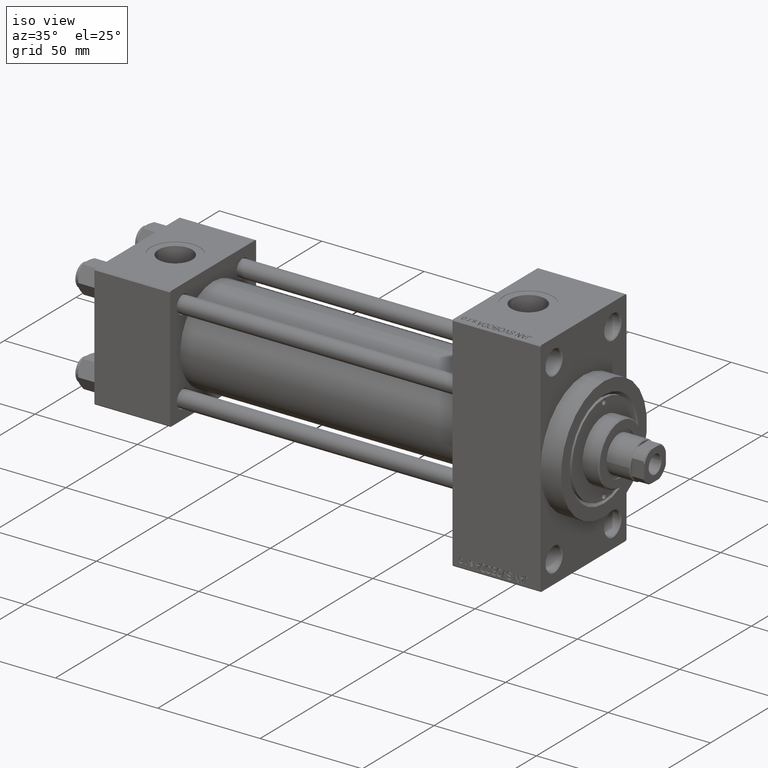
[diagram: clean part render]
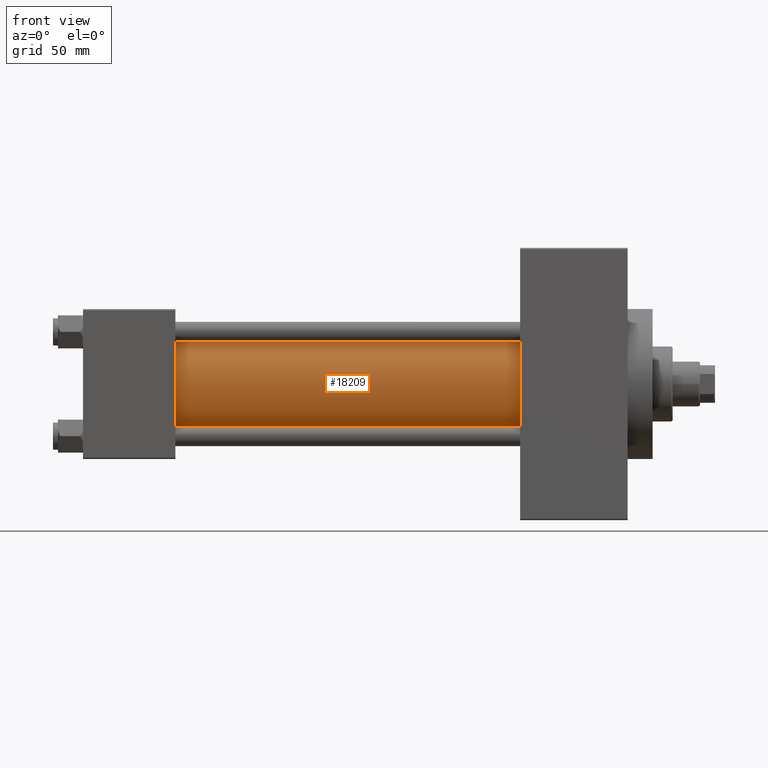
[diagram: tour spotlight — one face highlighted and labeled with its STEP entity id]
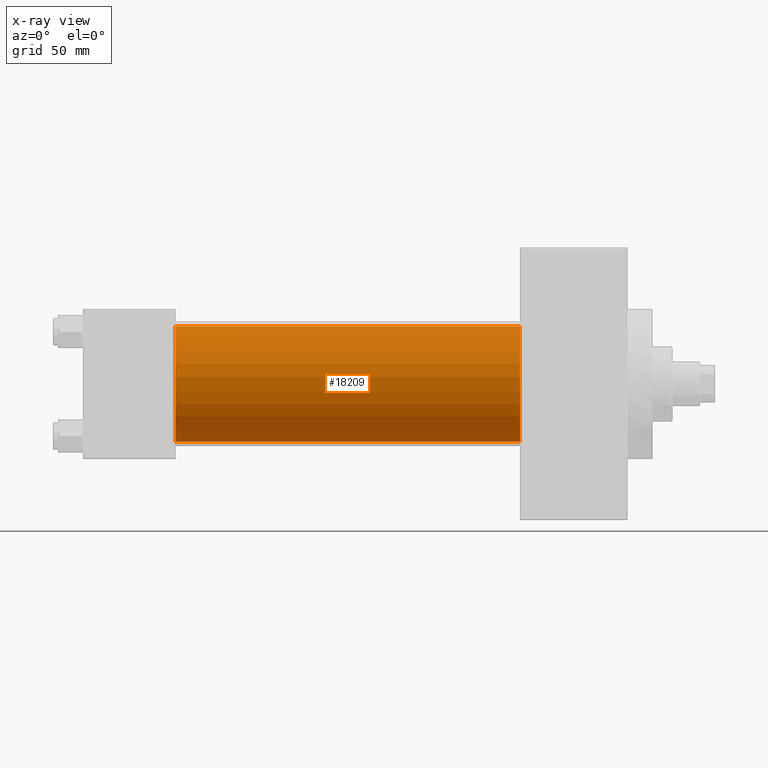
[diagram: x-ray of the same camera — body ghosted, this tour face saturated]
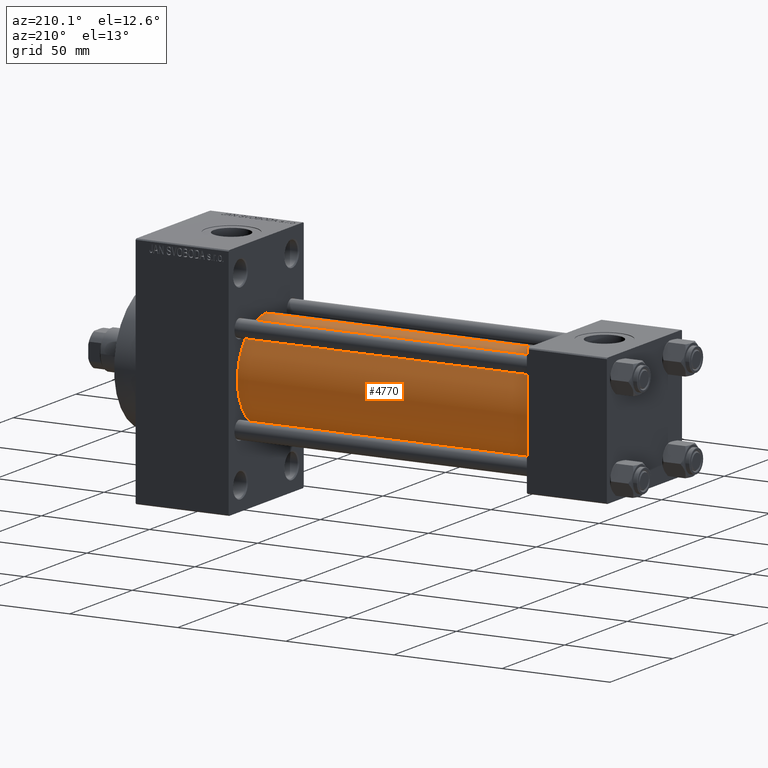
[diagram: tour spotlight — one face highlighted and labeled with its STEP entity id]
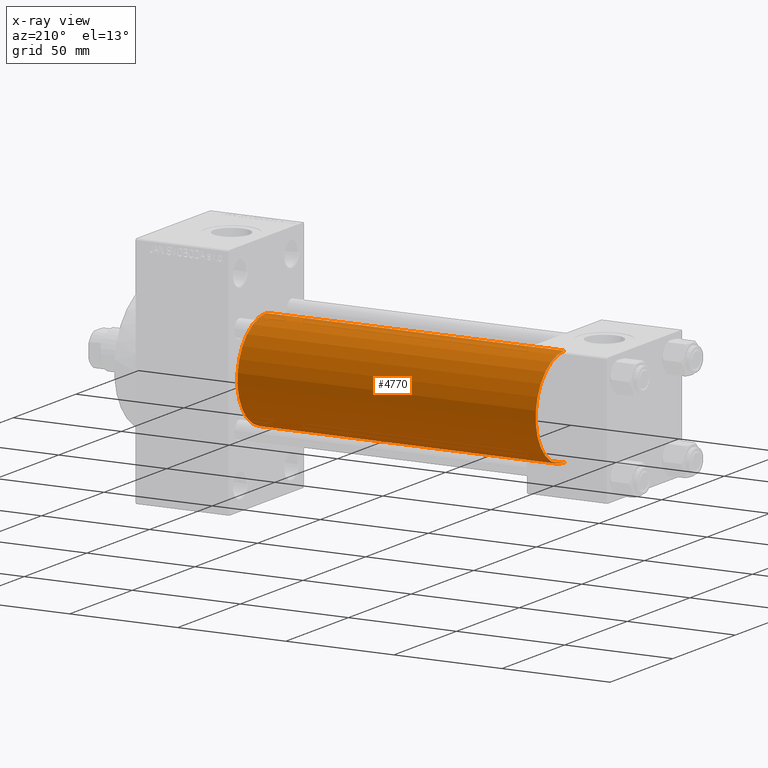
[diagram: x-ray of the same camera — body ghosted, this tour face saturated]
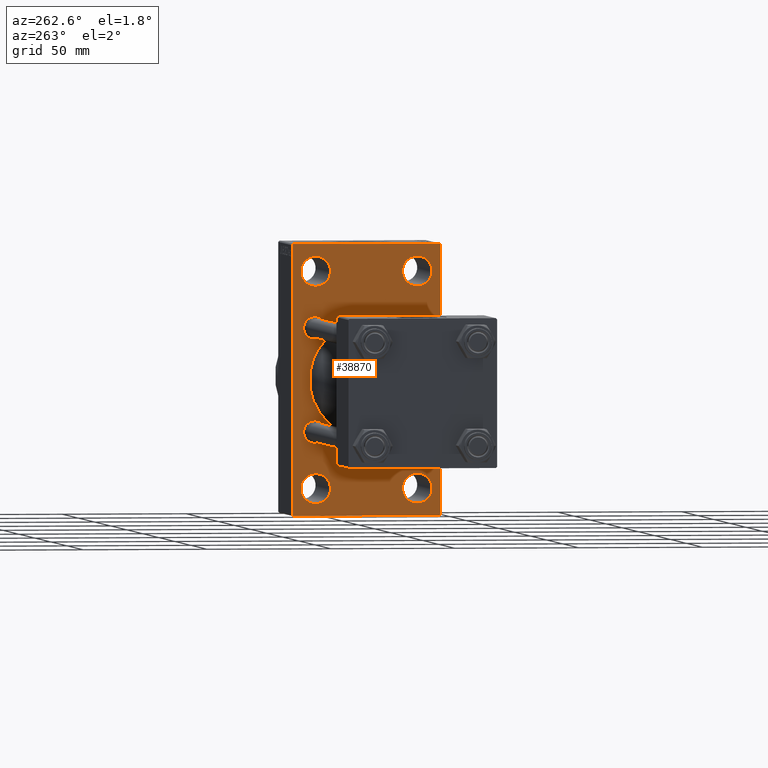
[diagram: tour spotlight — one face highlighted and labeled with its STEP entity id]
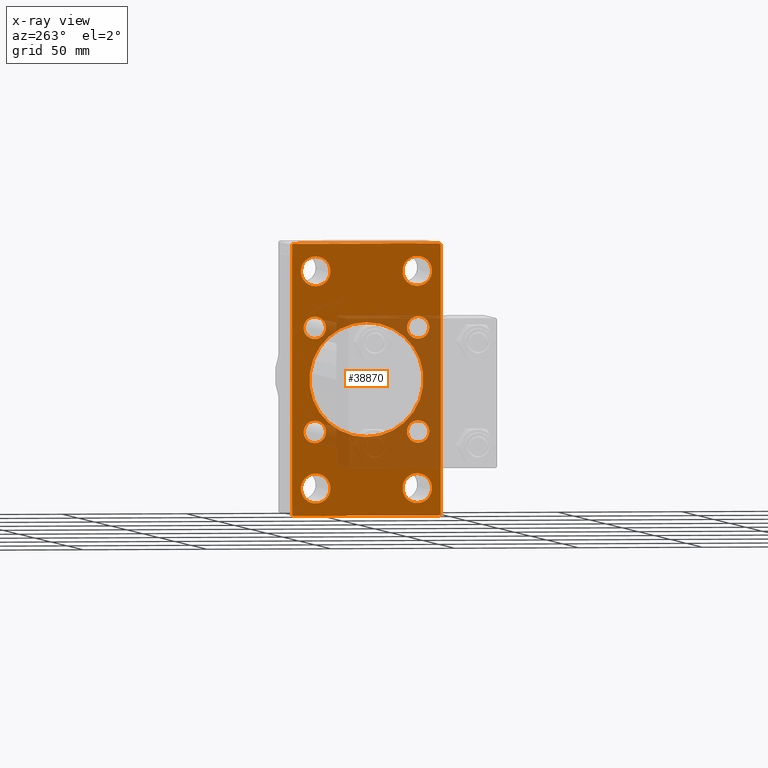
[diagram: x-ray of the same camera — body ghosted, this tour face saturated]
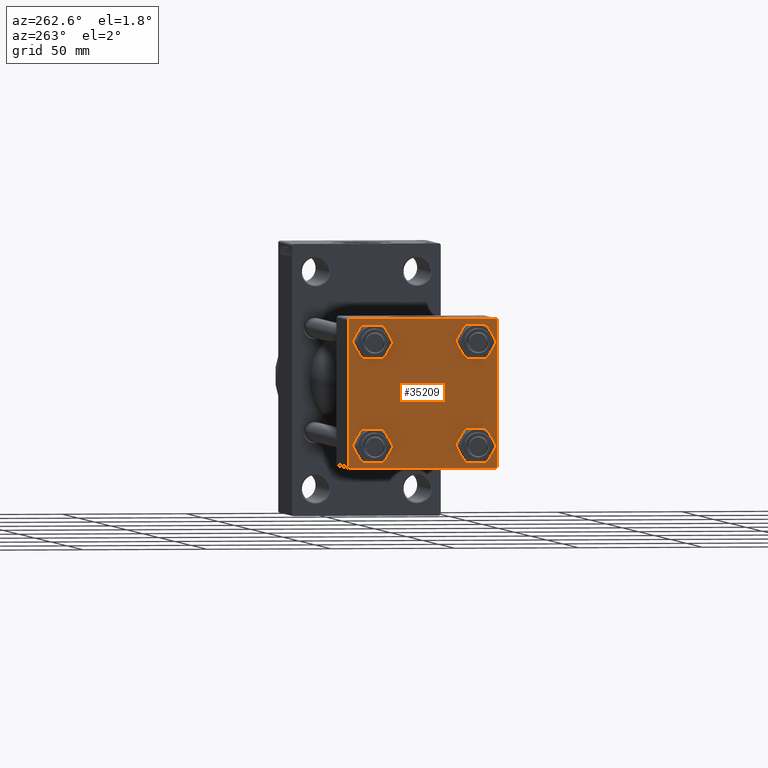
[diagram: tour spotlight — one face highlighted and labeled with its STEP entity id]
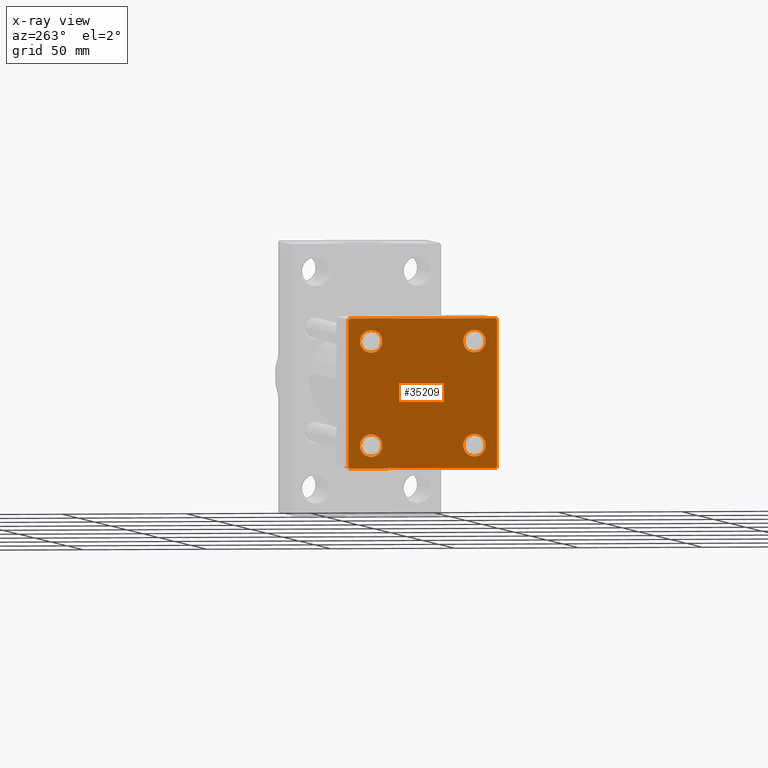
[diagram: x-ray of the same camera — body ghosted, this tour face saturated]
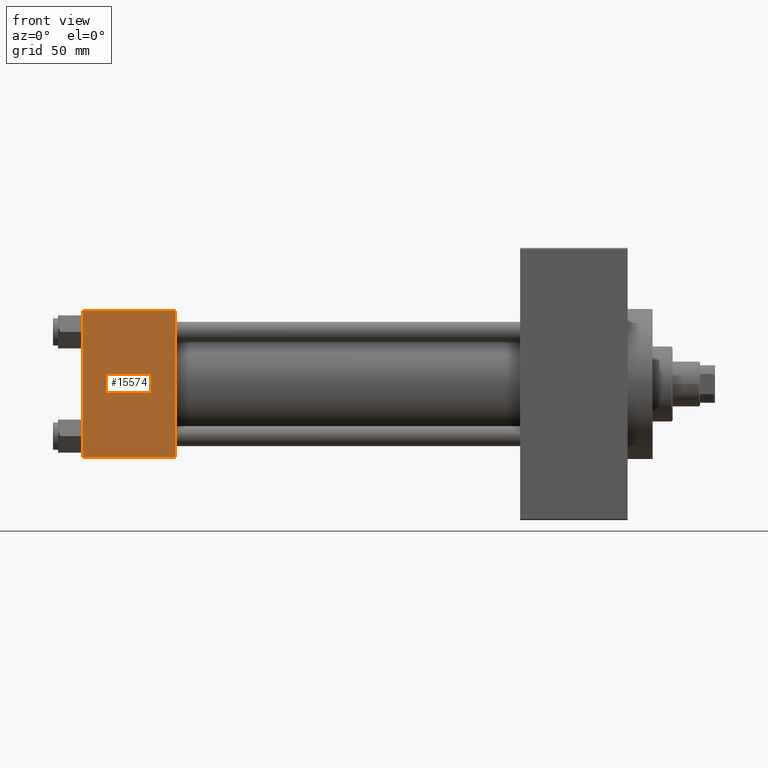
[diagram: tour spotlight — one face highlighted and labeled with its STEP entity id]
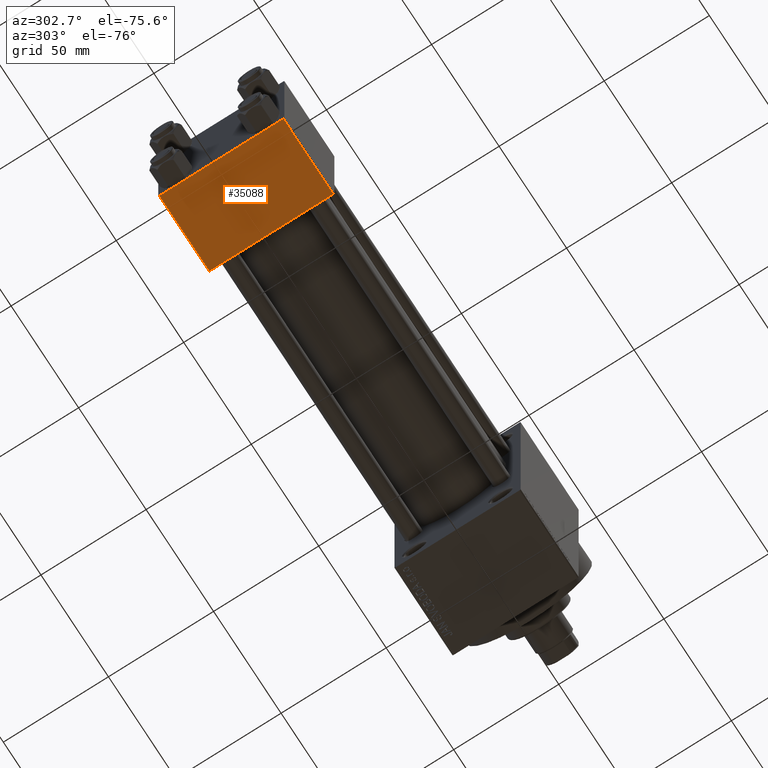
[diagram: tour spotlight — one face highlighted and labeled with its STEP entity id]
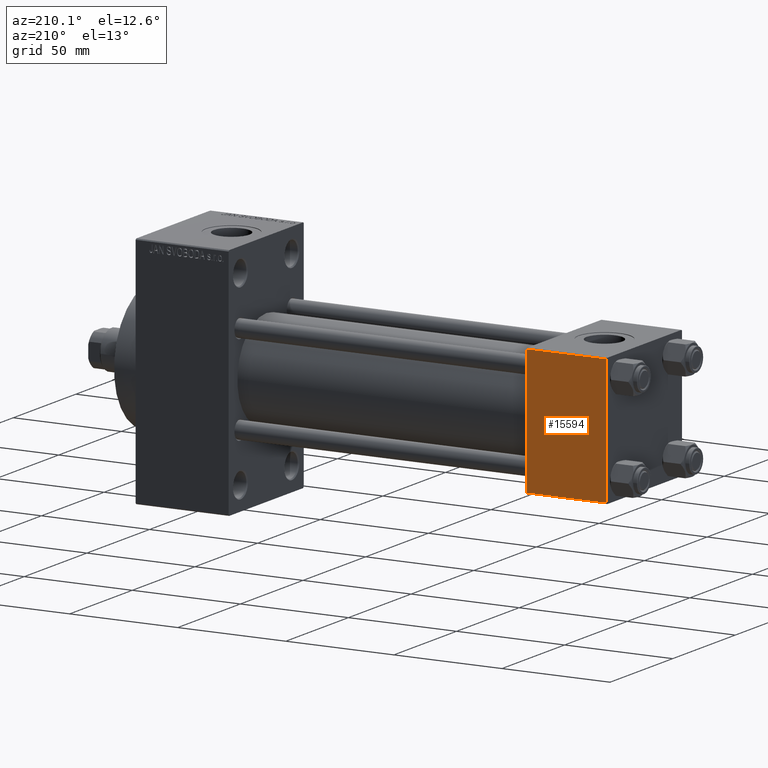
[diagram: tour spotlight — one face highlighted and labeled with its STEP entity id]
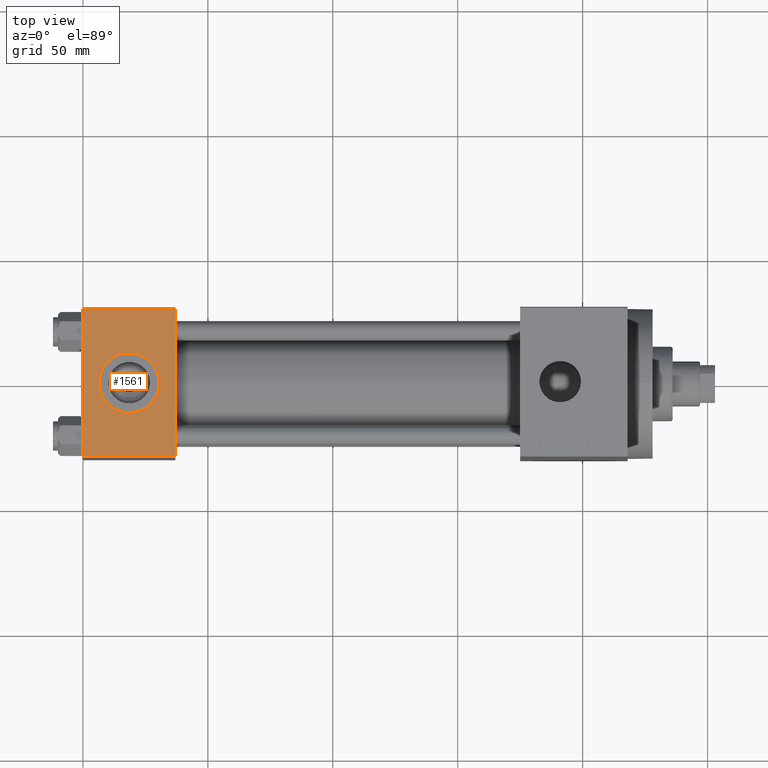
[diagram: tour spotlight — one face highlighted and labeled with its STEP entity id]
A machine part: a face-by-face anatomy tour. The part has 1112 B-rep faces; the first image is the clean iso view, then the 8 largest visible faces are spotlighted one at a time (largest first), each with its STEP entity span.

Face 1 — front view, entity #18209. An x-ray twin of the same camera follows (body ghosted, this face saturated) — the face is partly hidden behind the body. In plain terms, the highlighted cylindrical surface (partial cylindrical patch) has radius 23 mm, axis along (-1, -0, -0).
Definition (entity closure, byte-faithful):
#1078 = EDGE_CURVE ( 'NONE', #16153, #42347, #10892, .T. ) ;
#1674 = CYLINDRICAL_SURFACE ( 'NONE', #33558, 23.00000000000000000 ) ;
#1712 = ORIENTED_EDGE ( 'NONE', *, *, #47177, .F. ) ;
#1812 = ORIENTED_EDGE ( 'NONE', *, *, #8561, .T. ) ;
#1850 = VECTOR ( 'NONE', #27648, 1000.000000000000000 ) ;
#2218 = LINE ( 'NONE', #45874, #1850 ) ;
#8561 = EDGE_CURVE ( 'NONE', #22349, #12540, #8835, .T. ) ;
#8600 = AXIS2_PLACEMENT_3D ( 'NONE', #22493, #32809, #43844 ) ;
#8835 = CIRCLE ( 'NONE', #11164, 23.00000000000000000 ) ;
#10427 = CARTESIAN_POINT ( 'NONE',  ( 175.0000000000000284, -2.602085213965210642E-15, 23.00000000000000000 ) ) ;
#10892 = CIRCLE ( 'NONE', #8600, 23.00000000000000000 ) ;
#11164 = AXIS2_PLACEMENT_3D ( 'NONE', #26209, #11582, #44670 ) ;
#11582 = DIRECTION ( 'NONE',  ( 1.000000000000000000, -0.000000000000000000, 0.000000000000000000 ) ) ;
#12004 = CARTESIAN_POINT ( 'NONE',  ( 175.0000000000000284, -2.602085213965210642E-15, 0.000000000000000000 ) ) ;
#12540 = VERTEX_POINT ( 'NONE', #33211 ) ;
#13183 = EDGE_LOOP ( 'NONE', ( #1712, #19456, #34966, #1812 ) ) ;
#16153 = VERTEX_POINT ( 'NONE', #10427 ) ;
#18209 = ADVANCED_FACE ( 'NONE', ( #34308 ), #1674, .T. ) ;
#19456 = ORIENTED_EDGE ( 'NONE', *, *, #1078, .F. ) ;
#19504 = CARTESIAN_POINT ( 'NONE',  ( 175.0000000000000284, 2.146024240737016609E-16, -23.00000000000000000 ) ) ;
#19665 = DIRECTION ( 'NONE',  ( -1.000000000000000000, -0.000000000000000000, -0.000000000000000000 ) ) ;
#21801 = LINE ( 'NONE', #43394, #31676 ) ;
#22349 = VERTEX_POINT ( 'NONE', #31230 ) ;
#22493 = CARTESIAN_POINT ( 'NONE',  ( 175.0000000000000284, -2.602085213965210642E-15, 0.000000000000000000 ) ) ;
#22803 = DIRECTION ( 'NONE',  ( 0.000000000000000000, 0.000000000000000000, 1.000000000000000000 ) ) ;
#26209 = CARTESIAN_POINT ( 'NONE',  ( 37.00000000000000711, -2.602085213965210642E-15, 0.000000000000000000 ) ) ;
#27648 = DIRECTION ( 'NONE',  ( -1.000000000000000000, -0.000000000000000000, -0.000000000000000000 ) ) ;
#31230 = CARTESIAN_POINT ( 'NONE',  ( 37.00000000000000711, -2.602085213965210642E-15, 23.00000000000000000 ) ) ;
#31676 = VECTOR ( 'NONE', #44113, 1000.000000000000000 ) ;
#32809 = DIRECTION ( 'NONE',  ( 1.000000000000000000, 0.000000000000000000, 0.000000000000000000 ) ) ;
#33211 = CARTESIAN_POINT ( 'NONE',  ( 37.00000000000000711, 2.146024240737016609E-16, -23.00000000000000000 ) ) ;
#33558 = AXIS2_PLACEMENT_3D ( 'NONE', #12004, #19665, #22803 ) ;
#34308 = FACE_OUTER_BOUND ( 'NONE', #13183, .T. ) ;
#34966 = ORIENTED_EDGE ( 'NONE', *, *, #45526, .T. ) ;
#42347 = VERTEX_POINT ( 'NONE', #19504 ) ;
#43394 = CARTESIAN_POINT ( 'NONE',  ( 175.0000000000000284, -2.602085213965210642E-15, 23.00000000000000000 ) ) ;
#43844 = DIRECTION ( 'NONE',  ( 0.000000000000000000, 0.000000000000000000, -1.000000000000000000 ) ) ;
#44113 = DIRECTION ( 'NONE',  ( -1.000000000000000000, -0.000000000000000000, -0.000000000000000000 ) ) ;
#44670 = DIRECTION ( 'NONE',  ( 0.000000000000000000, 0.000000000000000000, 1.000000000000000000 ) ) ;
#45526 = EDGE_CURVE ( 'NONE', #16153, #22349, #21801, .T. ) ;
#45874 = CARTESIAN_POINT ( 'NONE',  ( 175.0000000000000284, 2.146024240737016609E-16, -23.00000000000000000 ) ) ;
#47177 = EDGE_CURVE ( 'NONE', #42347, #12540, #2218, .T. ) ;

Face 2 — auxiliary view, entity #4770. An x-ray twin of the same camera follows (body ghosted, this face saturated) — the face is partly hidden behind the body. In plain terms, the highlighted cylindrical surface (partial cylindrical patch) has radius 23 mm, axis along (-1, -0, -0).
Definition (entity closure, byte-faithful):
#1850 = VECTOR ( 'NONE', #27648, 1000.000000000000000 ) ;
#2218 = LINE ( 'NONE', #45874, #1850 ) ;
#2343 = CARTESIAN_POINT ( 'NONE',  ( 175.0000000000000284, -2.602085213965210642E-15, 0.000000000000000000 ) ) ;
#4167 = ORIENTED_EDGE ( 'NONE', *, *, #47177, .T. ) ;
#4515 = CYLINDRICAL_SURFACE ( 'NONE', #7191, 23.00000000000000000 ) ;
#4770 = ADVANCED_FACE ( 'NONE', ( #34253 ), #4515, .T. ) ;
#4856 = CIRCLE ( 'NONE', #32456, 23.00000000000000000 ) ;
#4866 = EDGE_CURVE ( 'NONE', #12540, #22349, #4856, .T. ) ;
#5214 = DIRECTION ( 'NONE',  ( 1.000000000000000000, -0.000000000000000000, 0.000000000000000000 ) ) ;
#5943 = DIRECTION ( 'NONE',  ( 0.000000000000000000, 0.000000000000000000, -1.000000000000000000 ) ) ;
#7191 = AXIS2_PLACEMENT_3D ( 'NONE', #11951, #12879, #19843 ) ;
#9660 = EDGE_LOOP ( 'NONE', ( #43694, #4167, #39302, #20098 ) ) ;
#10427 = CARTESIAN_POINT ( 'NONE',  ( 175.0000000000000284, -2.602085213965210642E-15, 23.00000000000000000 ) ) ;
#11951 = CARTESIAN_POINT ( 'NONE',  ( 175.0000000000000284, -2.602085213965210642E-15, 0.000000000000000000 ) ) ;
#12540 = VERTEX_POINT ( 'NONE', #33211 ) ;
#12814 = AXIS2_PLACEMENT_3D ( 'NONE', #2343, #31856, #5943 ) ;
#12879 = DIRECTION ( 'NONE',  ( -1.000000000000000000, -0.000000000000000000, -0.000000000000000000 ) ) ;
#16153 = VERTEX_POINT ( 'NONE', #10427 ) ;
#19504 = CARTESIAN_POINT ( 'NONE',  ( 175.0000000000000284, 2.146024240737016609E-16, -23.00000000000000000 ) ) ;
#19843 = DIRECTION ( 'NONE',  ( 0.000000000000000000, 0.000000000000000000, 1.000000000000000000 ) ) ;
#20098 = ORIENTED_EDGE ( 'NONE', *, *, #45526, .F. ) ;
#21801 = LINE ( 'NONE', #43394, #31676 ) ;
#22349 = VERTEX_POINT ( 'NONE', #31230 ) ;
#27648 = DIRECTION ( 'NONE',  ( -1.000000000000000000, -0.000000000000000000, -0.000000000000000000 ) ) ;
#27850 = EDGE_CURVE ( 'NONE', #42347, #16153, #38091, .T. ) ;
#31125 = CARTESIAN_POINT ( 'NONE',  ( 37.00000000000000711, -2.602085213965210642E-15, 0.000000000000000000 ) ) ;
#31230 = CARTESIAN_POINT ( 'NONE',  ( 37.00000000000000711, -2.602085213965210642E-15, 23.00000000000000000 ) ) ;
#31676 = VECTOR ( 'NONE', #44113, 1000.000000000000000 ) ;
#31856 = DIRECTION ( 'NONE',  ( 1.000000000000000000, 0.000000000000000000, 0.000000000000000000 ) ) ;
#32456 = AXIS2_PLACEMENT_3D ( 'NONE', #31125, #5214, #34492 ) ;
#33211 = CARTESIAN_POINT ( 'NONE',  ( 37.00000000000000711, 2.146024240737016609E-16, -23.00000000000000000 ) ) ;
#34253 = FACE_OUTER_BOUND ( 'NONE', #9660, .T. ) ;
#34492 = DIRECTION ( 'NONE',  ( 0.000000000000000000, 0.000000000000000000, 1.000000000000000000 ) ) ;
#38091 = CIRCLE ( 'NONE', #12814, 23.00000000000000000 ) ;
#39302 = ORIENTED_EDGE ( 'NONE', *, *, #4866, .T. ) ;
#42347 = VERTEX_POINT ( 'NONE', #19504 ) ;
#43394 = CARTESIAN_POINT ( 'NONE',  ( 175.0000000000000284, -2.602085213965210642E-15, 23.00000000000000000 ) ) ;
#43694 = ORIENTED_EDGE ( 'NONE', *, *, #27850, .F. ) ;
#44113 = DIRECTION ( 'NONE',  ( -1.000000000000000000, -0.000000000000000000, -0.000000000000000000 ) ) ;
#45526 = EDGE_CURVE ( 'NONE', #16153, #22349, #21801, .T. ) ;
#45874 = CARTESIAN_POINT ( 'NONE',  ( 175.0000000000000284, 2.146024240737016609E-16, -23.00000000000000000 ) ) ;
#47177 = EDGE_CURVE ( 'NONE', #42347, #12540, #2218, .T. ) ;

Face 3 — auxiliary view, entity #38870. An x-ray twin of the same camera follows (body ghosted, this face saturated) — the face is partly hidden behind the body. In plain terms, the highlighted planar face has unit normal (-1, 0, 0).
Definition (entity closure, byte-faithful):
#995 = AXIS2_PLACEMENT_3D ( 'NONE', #27931, #38961, #35603 ) ;
#1078 = EDGE_CURVE ( 'NONE', #16153, #42347, #10892, .T. ) ;
#1313 = CARTESIAN_POINT ( 'NONE',  ( 175.0000000000000284, -20.84999999999999076, -20.85000000000000497 ) ) ;
#1556 = CARTESIAN_POINT ( 'NONE',  ( 175.0000000000000284, -20.84999999999999076, 25.35000000000001208 ) ) ;
#1630 = ORIENTED_EDGE ( 'NONE', *, *, #41051, .T. ) ;
#1692 = CARTESIAN_POINT ( 'NONE',  ( 175.0000000000000284, -20.84999999999999076, -25.35000000000001208 ) ) ;
#1796 = DIRECTION ( 'NONE',  ( 0.000000000000000000, 0.000000000000000000, 1.000000000000000000 ) ) ;
#1815 = DIRECTION ( 'NONE',  ( 0.000000000000000000, 0.000000000000000000, 1.000000000000000000 ) ) ;
#1840 = AXIS2_PLACEMENT_3D ( 'NONE', #31538, #27944, #31778 ) ;
#2058 = VERTEX_POINT ( 'NONE', #18839 ) ;
#2333 = EDGE_LOOP ( 'NONE', ( #42410, #23725 ) ) ;
#2343 = CARTESIAN_POINT ( 'NONE',  ( 175.0000000000000284, -2.602085213965210642E-15, 0.000000000000000000 ) ) ;
#2532 = CARTESIAN_POINT ( 'NONE',  ( 175.0000000000000284, -20.84999999999999076, -20.85000000000000497 ) ) ;
#2585 = CARTESIAN_POINT ( 'NONE',  ( 175.0000000000000284, -20.50000000000000000, 43.50000000000000000 ) ) ;
#2602 = AXIS2_PLACEMENT_3D ( 'NONE', #2585, #43119, #13611 ) ;
#2630 = LINE ( 'NONE', #46285, #46723 ) ;
#2796 = FACE_BOUND ( 'NONE', #41512, .T. ) ;
#3401 = ORIENTED_EDGE ( 'NONE', *, *, #30911, .T. ) ;
#3521 = DIRECTION ( 'NONE',  ( 1.000000000000000000, -0.000000000000000000, 0.000000000000000000 ) ) ;
#3608 = ORIENTED_EDGE ( 'NONE', *, *, #19882, .T. ) ;
#3833 = VERTEX_POINT ( 'NONE', #6219 ) ;
#3920 = CARTESIAN_POINT ( 'NONE',  ( 175.0000000000000284, -20.84999999999999076, 16.34999999999999787 ) ) ;
#4002 = EDGE_CURVE ( 'NONE', #41050, #15583, #7120, .T. ) ;
#4888 = AXIS2_PLACEMENT_3D ( 'NONE', #28253, #3521, #20802 ) ;
#5243 = EDGE_CURVE ( 'NONE', #12834, #3833, #19442, .T. ) ;
#5386 = AXIS2_PLACEMENT_3D ( 'NONE', #32063, #39494, #46914 ) ;
#5421 = DIRECTION ( 'NONE',  ( 1.000000000000000000, -0.000000000000000000, 0.000000000000000000 ) ) ;
#5464 = LINE ( 'NONE', #12663, #44690 ) ;
#5943 = DIRECTION ( 'NONE',  ( 0.000000000000000000, 0.000000000000000000, -1.000000000000000000 ) ) ;
#6015 = EDGE_CURVE ( 'NONE', #38180, #25808, #27111, .T. ) ;
#6022 = CARTESIAN_POINT ( 'NONE',  ( 175.0000000000000284, 29.99999999999999645, -54.49999999999999289 ) ) ;
#6077 = EDGE_CURVE ( 'NONE', #20039, #29790, #23282, .T. ) ;
#6081 = ORIENTED_EDGE ( 'NONE', *, *, #27850, .T. ) ;
#6219 = CARTESIAN_POINT ( 'NONE',  ( 175.0000000000000284, 20.84999999999999787, 16.34999999999999432 ) ) ;
#6387 = FACE_BOUND ( 'NONE', #30022, .T. ) ;
#6644 = CARTESIAN_POINT ( 'NONE',  ( 175.0000000000000284, 20.84999999999999787, -16.34999999999999432 ) ) ;
#6857 = FACE_BOUND ( 'NONE', #42821, .T. ) ;
#7120 = CIRCLE ( 'NONE', #995, 5.999999999999838352 ) ;
#7127 = CIRCLE ( 'NONE', #46197, 5.999999999999838352 ) ;
#7553 = VECTOR ( 'NONE', #42747, 1000.000000000000000 ) ;
#8159 = CARTESIAN_POINT ( 'NONE',  ( 175.0000000000000284, -20.84999999999999076, 20.85000000000000497 ) ) ;
#8540 = CIRCLE ( 'NONE', #34562, 4.500000000000007105 ) ;
#8600 = AXIS2_PLACEMENT_3D ( 'NONE', #22493, #32809, #43844 ) ;
#8630 = DIRECTION ( 'NONE',  ( 0.000000000000000000, 0.000000000000000000, 1.000000000000000000 ) ) ;
#8904 = EDGE_LOOP ( 'NONE', ( #45112, #1630 ) ) ;
#9265 = EDGE_LOOP ( 'NONE', ( #36401, #35742 ) ) ;
#9363 = CARTESIAN_POINT ( 'NONE',  ( 175.0000000000000284, 41.99999999999997158, 41.99999999999997158 ) ) ;
#9472 = ORIENTED_EDGE ( 'NONE', *, *, #37033, .T. ) ;
#9957 = AXIS2_PLACEMENT_3D ( 'NONE', #44167, #30006, #18969 ) ;
#10249 = CARTESIAN_POINT ( 'NONE',  ( 175.0000000000000284, 20.84999999999999787, -20.85000000000000142 ) ) ;
#10427 = CARTESIAN_POINT ( 'NONE',  ( 175.0000000000000284, -2.602085213965210642E-15, 23.00000000000000000 ) ) ;
#10892 = CIRCLE ( 'NONE', #8600, 23.00000000000000000 ) ;
#10954 = DIRECTION ( 'NONE',  ( 0.000000000000000000, 0.000000000000000000, 1.000000000000000000 ) ) ;
#11301 = DIRECTION ( 'NONE',  ( 0.000000000000000000, 0.000000000000000000, 1.000000000000000000 ) ) ;
#11659 = CARTESIAN_POINT ( 'NONE',  ( 175.0000000000000284, -30.00000000000000000, 54.00000000000002842 ) ) ;
#11726 = DIRECTION ( 'NONE',  ( 0.000000000000000000, 0.000000000000000000, -1.000000000000000000 ) ) ;
#11852 = ORIENTED_EDGE ( 'NONE', *, *, #30012, .T. ) ;
#12216 = EDGE_LOOP ( 'NONE', ( #31599, #3608 ) ) ;
#12346 = DIRECTION ( 'NONE',  ( 0.000000000000000000, 0.000000000000000000, 1.000000000000000000 ) ) ;
#12590 = ORIENTED_EDGE ( 'NONE', *, *, #24963, .F. ) ;
#12657 = DIRECTION ( 'NONE',  ( 1.000000000000000000, -0.000000000000000000, 0.000000000000000000 ) ) ;
#12663 = CARTESIAN_POINT ( 'NONE',  ( 175.0000000000000284, -30.00000000000000000, 54.50000000000000000 ) ) ;
#12814 = AXIS2_PLACEMENT_3D ( 'NONE', #2343, #31856, #5943 ) ;
#12834 = VERTEX_POINT ( 'NONE', #23709 ) ;
#13114 = EDGE_CURVE ( 'NONE', #39627, #27586, #31079, .T. ) ;
#13397 = ORIENTED_EDGE ( 'NONE', *, *, #25694, .T. ) ;
#13611 = DIRECTION ( 'NONE',  ( 0.000000000000000000, 0.000000000000000000, 1.000000000000000000 ) ) ;
#14037 = FACE_BOUND ( 'NONE', #43906, .T. ) ;
#14114 = VERTEX_POINT ( 'NONE', #35879 ) ;
#14275 = FACE_BOUND ( 'NONE', #9265, .T. ) ;
#15029 = VERTEX_POINT ( 'NONE', #11659 ) ;
#15286 = ORIENTED_EDGE ( 'NONE', *, *, #1078, .T. ) ;
#15583 = VERTEX_POINT ( 'NONE', #31950 ) ;
#15676 = CARTESIAN_POINT ( 'NONE',  ( 175.0000000000000284, 29.50000000000002132, -54.49999999999999289 ) ) ;
#15689 = ORIENTED_EDGE ( 'NONE', *, *, #46382, .F. ) ;
#16153 = VERTEX_POINT ( 'NONE', #10427 ) ;
#16506 = VERTEX_POINT ( 'NONE', #22109 ) ;
#16541 = DIRECTION ( 'NONE',  ( -0.000000000000000000, -0.7071067811865474617, -0.7071067811865474617 ) ) ;
#16817 = CIRCLE ( 'NONE', #9957, 4.500000000000007105 ) ;
#17210 = EDGE_CURVE ( 'NONE', #2058, #27029, #46529, .T. ) ;
#17367 = CARTESIAN_POINT ( 'NONE',  ( 175.0000000000000284, 20.50000000000000000, 43.50000000000000000 ) ) ;
#17421 = FACE_BOUND ( 'NONE', #2333, .T. ) ;
#17514 = EDGE_LOOP ( 'NONE', ( #25097, #19389 ) ) ;
#17589 = DIRECTION ( 'NONE',  ( 1.000000000000000000, -0.000000000000000000, 0.000000000000000000 ) ) ;
#18199 = LINE ( 'NONE', #28353, #7553 ) ;
#18302 = DIRECTION ( 'NONE',  ( 0.000000000000000000, 0.000000000000000000, 1.000000000000000000 ) ) ;
#18839 = CARTESIAN_POINT ( 'NONE',  ( 175.0000000000000284, 20.50000000000000000, 49.49999999999983658 ) ) ;
#18969 = DIRECTION ( 'NONE',  ( 0.000000000000000000, 0.000000000000000000, 1.000000000000000000 ) ) ;
#19083 = CIRCLE ( 'NONE', #42056, 5.999999999999838352 ) ;
#19386 = EDGE_CURVE ( 'NONE', #36933, #16506, #18199, .T. ) ;
#19389 = ORIENTED_EDGE ( 'NONE', *, *, #6077, .T. ) ;
#19442 = CIRCLE ( 'NONE', #1840, 4.500000000000007105 ) ;
#19449 = EDGE_CURVE ( 'NONE', #3833, #12834, #27442, .T. ) ;
#19504 = CARTESIAN_POINT ( 'NONE',  ( 175.0000000000000284, 2.146024240737016609E-16, -23.00000000000000000 ) ) ;
#19709 = LINE ( 'NONE', #31460, #39027 ) ;
#19882 = EDGE_CURVE ( 'NONE', #27029, #2058, #46586, .T. ) ;
#19939 = LINE ( 'NONE', #6022, #36795 ) ;
#20039 = VERTEX_POINT ( 'NONE', #44696 ) ;
#20406 = CARTESIAN_POINT ( 'NONE',  ( 175.0000000000000284, -20.50000000000000000, -37.50000000000015632 ) ) ;
#20446 = EDGE_CURVE ( 'NONE', #15583, #41050, #32118, .T. ) ;
#20802 = DIRECTION ( 'NONE',  ( 0.000000000000000000, 0.000000000000000000, 1.000000000000000000 ) ) ;
#21009 = FACE_BOUND ( 'NONE', #8904, .T. ) ;
#21695 = VERTEX_POINT ( 'NONE', #36188 ) ;
#21947 = LINE ( 'NONE', #40181, #37567 ) ;
#22033 = VERTEX_POINT ( 'NONE', #1556 ) ;
#22109 = CARTESIAN_POINT ( 'NONE',  ( 175.0000000000000284, -30.00000000000000000, -53.99999999999995737 ) ) ;
#22154 = CARTESIAN_POINT ( 'NONE',  ( 175.0000000000000284, -29.49999999999997513, -54.50000000000000000 ) ) ;
#22217 = CARTESIAN_POINT ( 'NONE',  ( 175.0000000000000284, -29.50000000000002842, 54.50000000000000000 ) ) ;
#22281 = CIRCLE ( 'NONE', #27601, 4.500000000000007105 ) ;
#22341 = CARTESIAN_POINT ( 'NONE',  ( 175.0000000000000284, -20.50000000000000000, -49.49999999999983658 ) ) ;
#22493 = CARTESIAN_POINT ( 'NONE',  ( 175.0000000000000284, -2.602085213965210642E-15, 0.000000000000000000 ) ) ;
#22639 = VERTEX_POINT ( 'NONE', #22217 ) ;
#23282 = CIRCLE ( 'NONE', #2602, 5.999999999999838352 ) ;
#23619 = AXIS2_PLACEMENT_3D ( 'NONE', #31542, #46646, #1796 ) ;
#23709 = CARTESIAN_POINT ( 'NONE',  ( 175.0000000000000284, 20.84999999999999787, 25.35000000000000853 ) ) ;
#23725 = ORIENTED_EDGE ( 'NONE', *, *, #20446, .T. ) ;
#24845 = CARTESIAN_POINT ( 'NONE',  ( 175.0000000000000284, -20.50000000000000000, 49.49999999999983658 ) ) ;
#24963 = EDGE_CURVE ( 'NONE', #14114, #22639, #19709, .T. ) ;
#25097 = ORIENTED_EDGE ( 'NONE', *, *, #44833, .T. ) ;
#25114 = EDGE_CURVE ( 'NONE', #25808, #38180, #19083, .T. ) ;
#25694 = EDGE_CURVE ( 'NONE', #40313, #22033, #16817, .T. ) ;
#25748 = DIRECTION ( 'NONE',  ( 1.000000000000000000, -0.000000000000000000, 0.000000000000000000 ) ) ;
#25808 = VERTEX_POINT ( 'NONE', #22341 ) ;
#25927 = CARTESIAN_POINT ( 'NONE',  ( 175.0000000000000284, -20.50000000000000000, -43.50000000000000000 ) ) ;
#26027 = VERTEX_POINT ( 'NONE', #44046 ) ;
#27029 = VERTEX_POINT ( 'NONE', #30665 ) ;
#27033 = CARTESIAN_POINT ( 'NONE',  ( 175.0000000000000284, 20.84999999999999787, -20.85000000000000142 ) ) ;
#27111 = CIRCLE ( 'NONE', #4888, 5.999999999999838352 ) ;
#27396 = AXIS2_PLACEMENT_3D ( 'NONE', #8159, #40543, #8630 ) ;
#27442 = CIRCLE ( 'NONE', #40498, 4.500000000000007105 ) ;
#27586 = VERTEX_POINT ( 'NONE', #1692 ) ;
#27601 = AXIS2_PLACEMENT_3D ( 'NONE', #27033, #17589, #34953 ) ;
#27846 = DIRECTION ( 'NONE',  ( 0.000000000000000000, 0.000000000000000000, 1.000000000000000000 ) ) ;
#27850 = EDGE_CURVE ( 'NONE', #42347, #16153, #38091, .T. ) ;
#27931 = CARTESIAN_POINT ( 'NONE',  ( 175.0000000000000284, 20.50000000000000000, -43.50000000000000000 ) ) ;
#27944 = DIRECTION ( 'NONE',  ( 1.000000000000000000, -0.000000000000000000, 0.000000000000000000 ) ) ;
#28170 = AXIS2_PLACEMENT_3D ( 'NONE', #17367, #25748, #18302 ) ;
#28218 = DIRECTION ( 'NONE',  ( 0.000000000000000000, 0.000000000000000000, 1.000000000000000000 ) ) ;
#28253 = CARTESIAN_POINT ( 'NONE',  ( 175.0000000000000284, -20.50000000000000000, -43.50000000000000000 ) ) ;
#28353 = CARTESIAN_POINT ( 'NONE',  ( 175.0000000000000284, -42.00000000000049738, -41.99999999999904077 ) ) ;
#28679 = FACE_OUTER_BOUND ( 'NONE', #29106, .T. ) ;
#28862 = LINE ( 'NONE', #42798, #34370 ) ;
#28932 = DIRECTION ( 'NONE',  ( 1.000000000000000000, -0.000000000000000000, 0.000000000000000000 ) ) ;
#29106 = EDGE_LOOP ( 'NONE', ( #35920, #46676, #15689, #3401, #12590, #35390, #30189, #9472 ) ) ;
#29114 = EDGE_CURVE ( 'NONE', #22033, #40313, #31241, .T. ) ;
#29790 = VERTEX_POINT ( 'NONE', #24845 ) ;
#30006 = DIRECTION ( 'NONE',  ( 1.000000000000000000, -0.000000000000000000, 0.000000000000000000 ) ) ;
#30012 = EDGE_CURVE ( 'NONE', #27586, #39627, #45073, .T. ) ;
#30022 = EDGE_LOOP ( 'NONE', ( #33449, #13397 ) ) ;
#30189 = ORIENTED_EDGE ( 'NONE', *, *, #38106, .T. ) ;
#30579 = DIRECTION ( 'NONE',  ( 1.000000000000000000, -0.000000000000000000, 0.000000000000000000 ) ) ;
#30665 = CARTESIAN_POINT ( 'NONE',  ( 175.0000000000000284, 20.50000000000000000, 37.50000000000015632 ) ) ;
#30911 = EDGE_CURVE ( 'NONE', #15029, #22639, #28862, .T. ) ;
#31079 = CIRCLE ( 'NONE', #38749, 4.500000000000007105 ) ;
#31241 = CIRCLE ( 'NONE', #27396, 4.500000000000007105 ) ;
#31429 = VERTEX_POINT ( 'NONE', #15676 ) ;
#31460 = CARTESIAN_POINT ( 'NONE',  ( 175.0000000000000284, 29.99999999999999645, 54.49999999999999289 ) ) ;
#31538 = CARTESIAN_POINT ( 'NONE',  ( 175.0000000000000284, 20.84999999999999787, 20.85000000000000142 ) ) ;
#31542 = CARTESIAN_POINT ( 'NONE',  ( 175.0000000000000284, 20.50000000000000000, 43.50000000000000000 ) ) ;
#31599 = ORIENTED_EDGE ( 'NONE', *, *, #17210, .T. ) ;
#31778 = DIRECTION ( 'NONE',  ( 0.000000000000000000, 0.000000000000000000, 1.000000000000000000 ) ) ;
#31856 = DIRECTION ( 'NONE',  ( 1.000000000000000000, 0.000000000000000000, 0.000000000000000000 ) ) ;
#31902 = DIRECTION ( 'NONE',  ( 0.000000000000000000, 0.7071067811865474617, -0.7071067811865474617 ) ) ;
#31921 = CARTESIAN_POINT ( 'NONE',  ( 175.0000000000000284, 20.50000000000000000, -43.50000000000000000 ) ) ;
#31950 = CARTESIAN_POINT ( 'NONE',  ( 175.0000000000000284, 20.50000000000000000, -49.49999999999983658 ) ) ;
#32063 = CARTESIAN_POINT ( 'NONE',  ( 175.0000000000000284, 0.000000000000000000, 0.000000000000000000 ) ) ;
#32084 = AXIS2_PLACEMENT_3D ( 'NONE', #31921, #46074, #27846 ) ;
#32118 = CIRCLE ( 'NONE', #32084, 5.999999999999838352 ) ;
#32809 = DIRECTION ( 'NONE',  ( 1.000000000000000000, 0.000000000000000000, 0.000000000000000000 ) ) ;
#33449 = ORIENTED_EDGE ( 'NONE', *, *, #29114, .T. ) ;
#33831 = ORIENTED_EDGE ( 'NONE', *, *, #6015, .T. ) ;
#34117 = DIRECTION ( 'NONE',  ( 0.000000000000000000, 0.000000000000000000, -1.000000000000000000 ) ) ;
#34356 = DIRECTION ( 'NONE',  ( 0.000000000000000000, -1.000000000000000000, 1.156482317317871478E-16 ) ) ;
#34370 = VECTOR ( 'NONE', #39203, 1000.000000000000000 ) ;
#34465 = ORIENTED_EDGE ( 'NONE', *, *, #13114, .T. ) ;
#34562 = AXIS2_PLACEMENT_3D ( 'NONE', #10249, #28932, #10954 ) ;
#34582 = DIRECTION ( 'NONE',  ( 0.000000000000000000, -1.000000000000000000, -1.156482317317871478E-16 ) ) ;
#34720 = CARTESIAN_POINT ( 'NONE',  ( 175.0000000000000284, -20.84999999999999076, -16.34999999999999787 ) ) ;
#34953 = DIRECTION ( 'NONE',  ( 0.000000000000000000, 0.000000000000000000, 1.000000000000000000 ) ) ;
#35313 = EDGE_CURVE ( 'NONE', #41052, #26027, #22281, .T. ) ;
#35390 = ORIENTED_EDGE ( 'NONE', *, *, #46181, .T. ) ;
#35424 = FACE_BOUND ( 'NONE', #12216, .T. ) ;
#35603 = DIRECTION ( 'NONE',  ( 0.000000000000000000, 0.000000000000000000, 1.000000000000000000 ) ) ;
#35742 = ORIENTED_EDGE ( 'NONE', *, *, #19449, .T. ) ;
#35879 = CARTESIAN_POINT ( 'NONE',  ( 175.0000000000000284, 29.49999999999996803, 54.49999999999999289 ) ) ;
#35920 = ORIENTED_EDGE ( 'NONE', *, *, #38305, .T. ) ;
#36188 = CARTESIAN_POINT ( 'NONE',  ( 175.0000000000000284, 29.99999999999999645, -54.00000000000002132 ) ) ;
#36355 = DIRECTION ( 'NONE',  ( 1.000000000000000000, -0.000000000000000000, 0.000000000000000000 ) ) ;
#36401 = ORIENTED_EDGE ( 'NONE', *, *, #5243, .T. ) ;
#36795 = VECTOR ( 'NONE', #34582, 1000.000000000000000 ) ;
#36933 = VERTEX_POINT ( 'NONE', #22154 ) ;
#37033 = EDGE_CURVE ( 'NONE', #21695, #31429, #2630, .T. ) ;
#37567 = VECTOR ( 'NONE', #34117, 1000.000000000000000 ) ;
#37806 = VECTOR ( 'NONE', #31902, 1000.000000000000114 ) ;
#38091 = CIRCLE ( 'NONE', #12814, 23.00000000000000000 ) ;
#38106 = EDGE_CURVE ( 'NONE', #38801, #21695, #21947, .T. ) ;
#38180 = VERTEX_POINT ( 'NONE', #20406 ) ;
#38305 = EDGE_CURVE ( 'NONE', #31429, #36933, #19939, .T. ) ;
#38325 = CARTESIAN_POINT ( 'NONE',  ( 175.0000000000000284, 20.84999999999999787, 20.85000000000000142 ) ) ;
#38749 = AXIS2_PLACEMENT_3D ( 'NONE', #2532, #5421, #1815 ) ;
#38801 = VERTEX_POINT ( 'NONE', #40255 ) ;
#38870 = ADVANCED_FACE ( 'NONE', ( #39257, #14037, #17421, #35424, #6387, #14275, #21009, #2796, #6857, #28679 ), #43552, .T. ) ;
#38961 = DIRECTION ( 'NONE',  ( 1.000000000000000000, -0.000000000000000000, 0.000000000000000000 ) ) ;
#39027 = VECTOR ( 'NONE', #34356, 1000.000000000000000 ) ;
#39203 = DIRECTION ( 'NONE',  ( -0.000000000000000000, 0.7071067811865450192, 0.7071067811865500152 ) ) ;
#39257 = FACE_BOUND ( 'NONE', #17514, .T. ) ;
#39494 = DIRECTION ( 'NONE',  ( -1.000000000000000000, 0.000000000000000000, -0.000000000000000000 ) ) ;
#39627 = VERTEX_POINT ( 'NONE', #34720 ) ;
#40181 = CARTESIAN_POINT ( 'NONE',  ( 175.0000000000000284, 29.99999999999999645, 54.49999999999999289 ) ) ;
#40255 = CARTESIAN_POINT ( 'NONE',  ( 175.0000000000000284, 29.99999999999999645, 53.99999999999996447 ) ) ;
#40313 = VERTEX_POINT ( 'NONE', #3920 ) ;
#40498 = AXIS2_PLACEMENT_3D ( 'NONE', #38325, #12657, #41684 ) ;
#40543 = DIRECTION ( 'NONE',  ( 1.000000000000000000, -0.000000000000000000, 0.000000000000000000 ) ) ;
#41050 = VERTEX_POINT ( 'NONE', #47396 ) ;
#41051 = EDGE_CURVE ( 'NONE', #26027, #41052, #8540, .T. ) ;
#41052 = VERTEX_POINT ( 'NONE', #6644 ) ;
#41254 = DIRECTION ( 'NONE',  ( 1.000000000000000000, -0.000000000000000000, 0.000000000000000000 ) ) ;
#41512 = EDGE_LOOP ( 'NONE', ( #34465, #11852 ) ) ;
#41684 = DIRECTION ( 'NONE',  ( 0.000000000000000000, 0.000000000000000000, 1.000000000000000000 ) ) ;
#42056 = AXIS2_PLACEMENT_3D ( 'NONE', #25927, #41254, #11301 ) ;
#42347 = VERTEX_POINT ( 'NONE', #19504 ) ;
#42410 = ORIENTED_EDGE ( 'NONE', *, *, #4002, .T. ) ;
#42747 = DIRECTION ( 'NONE',  ( 0.000000000000000000, -0.7071067811865352493, 0.7071067811865597852 ) ) ;
#42785 = AXIS2_PLACEMENT_3D ( 'NONE', #1313, #30579, #12346 ) ;
#42798 = CARTESIAN_POINT ( 'NONE',  ( 175.0000000000000284, -42.00000000000011369, 41.99999999999982236 ) ) ;
#42821 = EDGE_LOOP ( 'NONE', ( #15286, #6081 ) ) ;
#43084 = CARTESIAN_POINT ( 'NONE',  ( 175.0000000000000284, -20.50000000000000000, 43.50000000000000000 ) ) ;
#43119 = DIRECTION ( 'NONE',  ( 1.000000000000000000, -0.000000000000000000, 0.000000000000000000 ) ) ;
#43552 = PLANE ( 'NONE',  #5386 ) ;
#43844 = DIRECTION ( 'NONE',  ( 0.000000000000000000, 0.000000000000000000, -1.000000000000000000 ) ) ;
#43906 = EDGE_LOOP ( 'NONE', ( #33831, #46741 ) ) ;
#44046 = CARTESIAN_POINT ( 'NONE',  ( 175.0000000000000284, 20.84999999999999787, -25.35000000000000853 ) ) ;
#44167 = CARTESIAN_POINT ( 'NONE',  ( 175.0000000000000284, -20.84999999999999076, 20.85000000000000497 ) ) ;
#44690 = VECTOR ( 'NONE', #11726, 1000.000000000000000 ) ;
#44696 = CARTESIAN_POINT ( 'NONE',  ( 175.0000000000000284, -20.50000000000000000, 37.50000000000015632 ) ) ;
#44833 = EDGE_CURVE ( 'NONE', #29790, #20039, #7127, .T. ) ;
#45073 = CIRCLE ( 'NONE', #42785, 4.500000000000007105 ) ;
#45112 = ORIENTED_EDGE ( 'NONE', *, *, #35313, .T. ) ;
#46074 = DIRECTION ( 'NONE',  ( 1.000000000000000000, -0.000000000000000000, 0.000000000000000000 ) ) ;
#46181 = EDGE_CURVE ( 'NONE', #14114, #38801, #46292, .T. ) ;
#46197 = AXIS2_PLACEMENT_3D ( 'NONE', #43084, #36355, #28218 ) ;
#46285 = CARTESIAN_POINT ( 'NONE',  ( 175.0000000000000284, 42.00000000000000711, -42.00000000000000711 ) ) ;
#46292 = LINE ( 'NONE', #9363, #37806 ) ;
#46382 = EDGE_CURVE ( 'NONE', #15029, #16506, #5464, .T. ) ;
#46529 = CIRCLE ( 'NONE', #28170, 5.999999999999838352 ) ;
#46586 = CIRCLE ( 'NONE', #23619, 5.999999999999838352 ) ;
#46646 = DIRECTION ( 'NONE',  ( 1.000000000000000000, -0.000000000000000000, 0.000000000000000000 ) ) ;
#46676 = ORIENTED_EDGE ( 'NONE', *, *, #19386, .T. ) ;
#46723 = VECTOR ( 'NONE', #16541, 1000.000000000000114 ) ;
#46741 = ORIENTED_EDGE ( 'NONE', *, *, #25114, .T. ) ;
#46914 = DIRECTION ( 'NONE',  ( -0.000000000000000000, 0.000000000000000000, 1.000000000000000000 ) ) ;
#47396 = CARTESIAN_POINT ( 'NONE',  ( 175.0000000000000284, 20.50000000000000000, -37.50000000000015632 ) ) ;

Face 4 — auxiliary view, entity #35209. An x-ray twin of the same camera follows (body ghosted, this face saturated) — the face is partly hidden behind the body. In plain terms, the highlighted planar face has unit normal (-1, 0, 0).
Definition (entity closure, byte-faithful):
#581 = DIRECTION ( 'NONE',  ( -0.000000000000000000, 0.7071067811865474617, 0.7071067811865474617 ) ) ;
#631 = LINE ( 'NONE', #7362, #5911 ) ;
#704 = AXIS2_PLACEMENT_3D ( 'NONE', #30280, #44907, #12048 ) ;
#801 = CIRCLE ( 'NONE', #11532, 4.500000000000017764 ) ;
#1104 = EDGE_LOOP ( 'NONE', ( #5824, #33056 ) ) ;
#1227 = ORIENTED_EDGE ( 'NONE', *, *, #36670, .T. ) ;
#1651 = VERTEX_POINT ( 'NONE', #11758 ) ;
#1778 = DIRECTION ( 'NONE',  ( 0.000000000000000000, 0.000000000000000000, 1.000000000000000000 ) ) ;
#2402 = EDGE_CURVE ( 'NONE', #1651, #26440, #36985, .T. ) ;
#2577 = AXIS2_PLACEMENT_3D ( 'NONE', #36921, #21807, #14363 ) ;
#2743 = CARTESIAN_POINT ( 'NONE',  ( 0.000000000000000000, 29.49999999999997868, -30.00000000000000000 ) ) ;
#2860 = EDGE_LOOP ( 'NONE', ( #8870, #33063 ) ) ;
#3032 = VERTEX_POINT ( 'NONE', #2743 ) ;
#3316 = CARTESIAN_POINT ( 'NONE',  ( 0.000000000000000000, 29.49999999999999289, 30.00000000000000000 ) ) ;
#3417 = LINE ( 'NONE', #41478, #31650 ) ;
#3617 = CIRCLE ( 'NONE', #11270, 4.500000000000017764 ) ;
#4737 = FACE_BOUND ( 'NONE', #43187, .T. ) ;
#5191 = ORIENTED_EDGE ( 'NONE', *, *, #26010, .F. ) ;
#5241 = EDGE_CURVE ( 'NONE', #3032, #16438, #16420, .T. ) ;
#5279 = VECTOR ( 'NONE', #581, 1000.000000000000114 ) ;
#5414 = AXIS2_PLACEMENT_3D ( 'NONE', #30816, #20009, #1778 ) ;
#5567 = AXIS2_PLACEMENT_3D ( 'NONE', #38422, #6273, #13463 ) ;
#5824 = ORIENTED_EDGE ( 'NONE', *, *, #37955, .T. ) ;
#5911 = VECTOR ( 'NONE', #40456, 1000.000000000000000 ) ;
#6215 = CARTESIAN_POINT ( 'NONE',  ( 0.000000000000000000, 29.99999999999999289, -29.50000000000000000 ) ) ;
#6273 = DIRECTION ( 'NONE',  ( 1.000000000000000000, -0.000000000000000000, 0.000000000000000000 ) ) ;
#6304 = ORIENTED_EDGE ( 'NONE', *, *, #17024, .T. ) ;
#6343 = DIRECTION ( 'NONE',  ( 0.000000000000000000, -1.000000000000000000, -1.156482317317871725E-16 ) ) ;
#7059 = DIRECTION ( 'NONE',  ( 0.000000000000000000, -0.7071067811865474617, 0.7071067811865474617 ) ) ;
#7348 = CARTESIAN_POINT ( 'NONE',  ( 0.000000000000000000, 29.99999999999999289, 30.00000000000000000 ) ) ;
#7362 = CARTESIAN_POINT ( 'NONE',  ( 0.000000000000000000, -30.00000000000000000, 29.99999999999999289 ) ) ;
#7868 = FACE_BOUND ( 'NONE', #2860, .T. ) ;
#8053 = CARTESIAN_POINT ( 'NONE',  ( 0.000000000000000000, 29.74999999999999645, 29.74999999999999645 ) ) ;
#8375 = CIRCLE ( 'NONE', #704, 4.500000000000017764 ) ;
#8727 = VECTOR ( 'NONE', #6343, 1000.000000000000000 ) ;
#8802 = CARTESIAN_POINT ( 'NONE',  ( 0.000000000000000000, -20.84999999999999076, 20.85000000000000497 ) ) ;
#8870 = ORIENTED_EDGE ( 'NONE', *, *, #28531, .T. ) ;
#9258 = ORIENTED_EDGE ( 'NONE', *, *, #39157, .T. ) ;
#10377 = VERTEX_POINT ( 'NONE', #29740 ) ;
#10440 = CARTESIAN_POINT ( 'NONE',  ( 0.000000000000000000, -30.00000000000000000, -29.50000000000001776 ) ) ;
#10990 = CARTESIAN_POINT ( 'NONE',  ( 0.000000000000000000, -20.84999999999999076, 25.35000000000002274 ) ) ;
#11103 = CARTESIAN_POINT ( 'NONE',  ( 0.000000000000000000, -29.49999999999998579, 29.99999999999999289 ) ) ;
#11270 = AXIS2_PLACEMENT_3D ( 'NONE', #21516, #14545, #39048 ) ;
#11532 = AXIS2_PLACEMENT_3D ( 'NONE', #8802, #34232, #12398 ) ;
#11758 = CARTESIAN_POINT ( 'NONE',  ( 0.000000000000000000, -20.84999999999999076, -25.35000000000002274 ) ) ;
#11938 = FACE_BOUND ( 'NONE', #35257, .T. ) ;
#12048 = DIRECTION ( 'NONE',  ( 0.000000000000000000, 0.000000000000000000, 1.000000000000000000 ) ) ;
#12393 = DIRECTION ( 'NONE',  ( 1.000000000000000000, -0.000000000000000000, 0.000000000000000000 ) ) ;
#12398 = DIRECTION ( 'NONE',  ( 0.000000000000000000, 0.000000000000000000, 1.000000000000000000 ) ) ;
#13307 = ORIENTED_EDGE ( 'NONE', *, *, #16745, .T. ) ;
#13463 = DIRECTION ( 'NONE',  ( 0.000000000000000000, 0.000000000000000000, 1.000000000000000000 ) ) ;
#13900 = ORIENTED_EDGE ( 'NONE', *, *, #44402, .T. ) ;
#14363 = DIRECTION ( 'NONE',  ( 0.000000000000000000, 0.000000000000000000, 1.000000000000000000 ) ) ;
#14366 = DIRECTION ( 'NONE',  ( 1.000000000000000000, -0.000000000000000000, 0.000000000000000000 ) ) ;
#14497 = LINE ( 'NONE', #14982, #5279 ) ;
#14545 = DIRECTION ( 'NONE',  ( 1.000000000000000000, -0.000000000000000000, 0.000000000000000000 ) ) ;
#14982 = CARTESIAN_POINT ( 'NONE',  ( -0.000000000000000000, -29.74999999999999645, 29.74999999999999645 ) ) ;
#15035 = ORIENTED_EDGE ( 'NONE', *, *, #17152, .F. ) ;
#15381 = VERTEX_POINT ( 'NONE', #38204 ) ;
#15418 = LINE ( 'NONE', #44456, #15936 ) ;
#15521 = FACE_BOUND ( 'NONE', #1104, .T. ) ;
#15936 = VECTOR ( 'NONE', #19495, 1000.000000000000000 ) ;
#16420 = LINE ( 'NONE', #31064, #8727 ) ;
#16438 = VERTEX_POINT ( 'NONE', #31246 ) ;
#16450 = CARTESIAN_POINT ( 'NONE',  ( 0.000000000000000000, -20.84999999999999076, -20.85000000000000497 ) ) ;
#16664 = ORIENTED_EDGE ( 'NONE', *, *, #46319, .T. ) ;
#16745 = EDGE_CURVE ( 'NONE', #39995, #10377, #45727, .T. ) ;
#17024 = EDGE_CURVE ( 'NONE', #30202, #39256, #3617, .T. ) ;
#17152 = EDGE_CURVE ( 'NONE', #17714, #34074, #631, .T. ) ;
#17714 = VERTEX_POINT ( 'NONE', #47150 ) ;
#18662 = CARTESIAN_POINT ( 'NONE',  ( 0.000000000000000000, 0.000000000000000000, 0.000000000000000000 ) ) ;
#18897 = FACE_OUTER_BOUND ( 'NONE', #35564, .T. ) ;
#19122 = EDGE_CURVE ( 'NONE', #24058, #21581, #15418, .T. ) ;
#19495 = DIRECTION ( 'NONE',  ( 0.000000000000000000, 0.000000000000000000, -1.000000000000000000 ) ) ;
#19895 = CARTESIAN_POINT ( 'NONE',  ( 0.000000000000000000, 20.84999999999999787, 25.35000000000001918 ) ) ;
#19967 = CARTESIAN_POINT ( 'NONE',  ( 0.000000000000000000, -20.84999999999999076, -16.34999999999998721 ) ) ;
#20009 = DIRECTION ( 'NONE',  ( 1.000000000000000000, -0.000000000000000000, 0.000000000000000000 ) ) ;
#21423 = CARTESIAN_POINT ( 'NONE',  ( 0.000000000000000000, 20.84999999999999787, -16.34999999999998366 ) ) ;
#21516 = CARTESIAN_POINT ( 'NONE',  ( 0.000000000000000000, 20.84999999999999787, -20.85000000000000142 ) ) ;
#21581 = VERTEX_POINT ( 'NONE', #6215 ) ;
#21807 = DIRECTION ( 'NONE',  ( 1.000000000000000000, -0.000000000000000000, 0.000000000000000000 ) ) ;
#21924 = LINE ( 'NONE', #36564, #46268 ) ;
#22039 = CIRCLE ( 'NONE', #23574, 4.500000000000017764 ) ;
#22458 = DIRECTION ( 'NONE',  ( 0.000000000000000000, -1.000000000000000000, -1.156482317317871725E-16 ) ) ;
#22502 = DIRECTION ( 'NONE',  ( -1.000000000000000000, 0.000000000000000000, -0.000000000000000000 ) ) ;
#23348 = ORIENTED_EDGE ( 'NONE', *, *, #32219, .T. ) ;
#23574 = AXIS2_PLACEMENT_3D ( 'NONE', #16450, #12393, #41417 ) ;
#24058 = VERTEX_POINT ( 'NONE', #27606 ) ;
#24907 = EDGE_CURVE ( 'NONE', #15381, #37861, #8375, .T. ) ;
#25654 = DIRECTION ( 'NONE',  ( 0.000000000000000000, 0.000000000000000000, 1.000000000000000000 ) ) ;
#25814 = LINE ( 'NONE', #7348, #47471 ) ;
#26010 = EDGE_CURVE ( 'NONE', #35145, #32533, #25814, .T. ) ;
#26330 = PLANE ( 'NONE',  #42957 ) ;
#26440 = VERTEX_POINT ( 'NONE', #19967 ) ;
#27606 = CARTESIAN_POINT ( 'NONE',  ( 0.000000000000000000, 29.99999999999999289, 29.50000000000000000 ) ) ;
#28531 = EDGE_CURVE ( 'NONE', #26440, #1651, #22039, .T. ) ;
#29740 = CARTESIAN_POINT ( 'NONE',  ( 0.000000000000000000, 20.84999999999999787, 16.34999999999998366 ) ) ;
#30113 = DIRECTION ( 'NONE',  ( 0.000000000000000000, 0.7071067811865474617, -0.7071067811865474617 ) ) ;
#30202 = VERTEX_POINT ( 'NONE', #21423 ) ;
#30280 = CARTESIAN_POINT ( 'NONE',  ( 0.000000000000000000, -20.84999999999999076, 20.85000000000000497 ) ) ;
#30425 = AXIS2_PLACEMENT_3D ( 'NONE', #36452, #14366, #25654 ) ;
#30816 = CARTESIAN_POINT ( 'NONE',  ( 0.000000000000000000, 20.84999999999999787, 20.85000000000000142 ) ) ;
#31064 = CARTESIAN_POINT ( 'NONE',  ( 0.000000000000000000, 29.99999999999999289, -30.00000000000000000 ) ) ;
#31246 = CARTESIAN_POINT ( 'NONE',  ( 0.000000000000000000, -29.50000000000000000, -30.00000000000000711 ) ) ;
#31650 = VECTOR ( 'NONE', #36286, 999.9999999999998863 ) ;
#32219 = EDGE_CURVE ( 'NONE', #17714, #32533, #14497, .T. ) ;
#32533 = VERTEX_POINT ( 'NONE', #11103 ) ;
#33056 = ORIENTED_EDGE ( 'NONE', *, *, #24907, .T. ) ;
#33063 = ORIENTED_EDGE ( 'NONE', *, *, #2402, .T. ) ;
#34074 = VERTEX_POINT ( 'NONE', #10440 ) ;
#34232 = DIRECTION ( 'NONE',  ( 1.000000000000000000, -0.000000000000000000, 0.000000000000000000 ) ) ;
#35145 = VERTEX_POINT ( 'NONE', #3316 ) ;
#35209 = ADVANCED_FACE ( 'NONE', ( #15521, #7868, #11938, #4737, #18897 ), #26330, .T. ) ;
#35257 = EDGE_LOOP ( 'NONE', ( #6304, #16664 ) ) ;
#35367 = CARTESIAN_POINT ( 'NONE',  ( 0.000000000000000000, 20.84999999999999787, -25.35000000000001918 ) ) ;
#35564 = EDGE_LOOP ( 'NONE', ( #40448, #13900, #46491, #47156, #15035, #23348, #5191, #1227 ) ) ;
#36266 = CIRCLE ( 'NONE', #2577, 4.500000000000017764 ) ;
#36286 = DIRECTION ( 'NONE',  ( -0.000000000000000000, -0.7071067811865574537, -0.7071067811865376918 ) ) ;
#36452 = CARTESIAN_POINT ( 'NONE',  ( 0.000000000000000000, 20.84999999999999787, 20.85000000000000142 ) ) ;
#36564 = CARTESIAN_POINT ( 'NONE',  ( 0.000000000000000000, -29.75000000000001066, -29.75000000000001066 ) ) ;
#36670 = EDGE_CURVE ( 'NONE', #35145, #24058, #40910, .T. ) ;
#36899 = DIRECTION ( 'NONE',  ( -0.000000000000000000, 0.000000000000000000, 1.000000000000000000 ) ) ;
#36921 = CARTESIAN_POINT ( 'NONE',  ( 0.000000000000000000, 20.84999999999999787, -20.85000000000000142 ) ) ;
#36985 = CIRCLE ( 'NONE', #5567, 4.500000000000017764 ) ;
#37861 = VERTEX_POINT ( 'NONE', #10990 ) ;
#37955 = EDGE_CURVE ( 'NONE', #37861, #15381, #801, .T. ) ;
#38204 = CARTESIAN_POINT ( 'NONE',  ( 0.000000000000000000, -20.84999999999999076, 16.34999999999998721 ) ) ;
#38422 = CARTESIAN_POINT ( 'NONE',  ( 0.000000000000000000, -20.84999999999999076, -20.85000000000000497 ) ) ;
#39048 = DIRECTION ( 'NONE',  ( 0.000000000000000000, 0.000000000000000000, 1.000000000000000000 ) ) ;
#39157 = EDGE_CURVE ( 'NONE', #10377, #39995, #46786, .T. ) ;
#39256 = VERTEX_POINT ( 'NONE', #35367 ) ;
#39995 = VERTEX_POINT ( 'NONE', #19895 ) ;
#40448 = ORIENTED_EDGE ( 'NONE', *, *, #19122, .T. ) ;
#40456 = DIRECTION ( 'NONE',  ( 0.000000000000000000, 0.000000000000000000, -1.000000000000000000 ) ) ;
#40910 = LINE ( 'NONE', #8053, #42089 ) ;
#41417 = DIRECTION ( 'NONE',  ( 0.000000000000000000, 0.000000000000000000, 1.000000000000000000 ) ) ;
#41478 = CARTESIAN_POINT ( 'NONE',  ( 0.000000000000000000, 29.74999999999957723, -29.75000000000040501 ) ) ;
#42089 = VECTOR ( 'NONE', #30113, 1000.000000000000114 ) ;
#42957 = AXIS2_PLACEMENT_3D ( 'NONE', #18662, #22502, #36899 ) ;
#43187 = EDGE_LOOP ( 'NONE', ( #13307, #9258 ) ) ;
#44402 = EDGE_CURVE ( 'NONE', #21581, #3032, #3417, .T. ) ;
#44456 = CARTESIAN_POINT ( 'NONE',  ( 0.000000000000000000, 29.99999999999999289, 30.00000000000000000 ) ) ;
#44907 = DIRECTION ( 'NONE',  ( 1.000000000000000000, -0.000000000000000000, 0.000000000000000000 ) ) ;
#45727 = CIRCLE ( 'NONE', #30425, 4.500000000000017764 ) ;
#46268 = VECTOR ( 'NONE', #7059, 1000.000000000000114 ) ;
#46319 = EDGE_CURVE ( 'NONE', #39256, #30202, #36266, .T. ) ;
#46491 = ORIENTED_EDGE ( 'NONE', *, *, #5241, .T. ) ;
#46786 = CIRCLE ( 'NONE', #5414, 4.500000000000017764 ) ;
#46950 = EDGE_CURVE ( 'NONE', #16438, #34074, #21924, .T. ) ;
#47150 = CARTESIAN_POINT ( 'NONE',  ( 0.000000000000000000, -30.00000000000000000, 29.49999999999999289 ) ) ;
#47156 = ORIENTED_EDGE ( 'NONE', *, *, #46950, .T. ) ;
#47471 = VECTOR ( 'NONE', #22458, 1000.000000000000000 ) ;

Face 5 — front view, entity #15574. In plain terms, the highlighted planar face has unit normal (0, 1, 0).
Definition (entity closure, byte-faithful):
#631 = LINE ( 'NONE', #7362, #5911 ) ;
#1241 = LINE ( 'NONE', #20163, #13671 ) ;
#2918 = CARTESIAN_POINT ( 'NONE',  ( 37.00000000000000000, -30.00000000000000000, 29.99999999999999289 ) ) ;
#3156 = DIRECTION ( 'NONE',  ( 0.000000000000000000, -0.000000000000000000, 1.000000000000000000 ) ) ;
#4634 = VECTOR ( 'NONE', #7927, 1000.000000000000000 ) ;
#4875 = EDGE_LOOP ( 'NONE', ( #13485, #21218, #41638, #25107 ) ) ;
#5869 = AXIS2_PLACEMENT_3D ( 'NONE', #2918, #29052, #3156 ) ;
#5911 = VECTOR ( 'NONE', #40456, 1000.000000000000000 ) ;
#7362 = CARTESIAN_POINT ( 'NONE',  ( 0.000000000000000000, -30.00000000000000000, 29.99999999999999289 ) ) ;
#7927 = DIRECTION ( 'NONE',  ( 0.000000000000000000, 0.000000000000000000, -1.000000000000000000 ) ) ;
#8952 = DIRECTION ( 'NONE',  ( -1.000000000000000000, 0.000000000000000000, 0.000000000000000000 ) ) ;
#10366 = FACE_OUTER_BOUND ( 'NONE', #4875, .T. ) ;
#10440 = CARTESIAN_POINT ( 'NONE',  ( 0.000000000000000000, -30.00000000000000000, -29.50000000000001776 ) ) ;
#11130 = VERTEX_POINT ( 'NONE', #25686 ) ;
#11300 = CARTESIAN_POINT ( 'NONE',  ( 37.00000000000000000, -30.00000000000000000, 29.99999999999999289 ) ) ;
#12654 = VERTEX_POINT ( 'NONE', #35513 ) ;
#13485 = ORIENTED_EDGE ( 'NONE', *, *, #17152, .T. ) ;
#13671 = VECTOR ( 'NONE', #42000, 1000.000000000000000 ) ;
#14411 = PLANE ( 'NONE',  #5869 ) ;
#15574 = ADVANCED_FACE ( 'NONE', ( #10366 ), #14411, .F. ) ;
#16356 = EDGE_CURVE ( 'NONE', #11130, #17714, #33673, .T. ) ;
#17152 = EDGE_CURVE ( 'NONE', #17714, #34074, #631, .T. ) ;
#17714 = VERTEX_POINT ( 'NONE', #47150 ) ;
#20163 = CARTESIAN_POINT ( 'NONE',  ( 37.00000000000000000, -30.00000000000000000, -29.50000000000001776 ) ) ;
#20282 = EDGE_CURVE ( 'NONE', #34074, #12654, #1241, .T. ) ;
#21218 = ORIENTED_EDGE ( 'NONE', *, *, #20282, .T. ) ;
#22001 = VECTOR ( 'NONE', #8952, 1000.000000000000000 ) ;
#23339 = CARTESIAN_POINT ( 'NONE',  ( 37.00000000000000000, -30.00000000000000000, 29.49999999999999289 ) ) ;
#25107 = ORIENTED_EDGE ( 'NONE', *, *, #16356, .T. ) ;
#25686 = CARTESIAN_POINT ( 'NONE',  ( 37.00000000000000000, -30.00000000000000000, 29.49999999999999289 ) ) ;
#29052 = DIRECTION ( 'NONE',  ( -0.000000000000000000, 1.000000000000000000, 0.000000000000000000 ) ) ;
#30456 = LINE ( 'NONE', #11300, #4634 ) ;
#33673 = LINE ( 'NONE', #23339, #22001 ) ;
#34074 = VERTEX_POINT ( 'NONE', #10440 ) ;
#34943 = EDGE_CURVE ( 'NONE', #11130, #12654, #30456, .T. ) ;
#35513 = CARTESIAN_POINT ( 'NONE',  ( 37.00000000000000000, -30.00000000000000000, -29.50000000000001776 ) ) ;
#40456 = DIRECTION ( 'NONE',  ( 0.000000000000000000, 0.000000000000000000, -1.000000000000000000 ) ) ;
#41638 = ORIENTED_EDGE ( 'NONE', *, *, #34943, .F. ) ;
#42000 = DIRECTION ( 'NONE',  ( 1.000000000000000000, 0.000000000000000000, 0.000000000000000000 ) ) ;
#47150 = CARTESIAN_POINT ( 'NONE',  ( 0.000000000000000000, -30.00000000000000000, 29.49999999999999289 ) ) ;

Face 6 — auxiliary view, entity #35088. In plain terms, the highlighted planar face has unit normal (0, 0, -1).
Definition (entity closure, byte-faithful):
#2743 = CARTESIAN_POINT ( 'NONE',  ( 0.000000000000000000, 29.49999999999997868, -30.00000000000000000 ) ) ;
#2987 = DIRECTION ( 'NONE',  ( 0.000000000000000000, -1.000000000000000000, -1.156482317317871725E-16 ) ) ;
#3032 = VERTEX_POINT ( 'NONE', #2743 ) ;
#4774 = VERTEX_POINT ( 'NONE', #15771 ) ;
#4898 = VECTOR ( 'NONE', #2987, 1000.000000000000000 ) ;
#5241 = EDGE_CURVE ( 'NONE', #3032, #16438, #16420, .T. ) ;
#5746 = DIRECTION ( 'NONE',  ( 1.000000000000000000, 0.000000000000000000, 0.000000000000000000 ) ) ;
#5786 = EDGE_CURVE ( 'NONE', #4774, #16438, #45991, .T. ) ;
#6343 = DIRECTION ( 'NONE',  ( 0.000000000000000000, -1.000000000000000000, -1.156482317317871725E-16 ) ) ;
#8727 = VECTOR ( 'NONE', #6343, 1000.000000000000000 ) ;
#9350 = LINE ( 'NONE', #17009, #17678 ) ;
#10202 = CARTESIAN_POINT ( 'NONE',  ( 37.00000000000000000, 29.99999999999999289, -30.00000000000000000 ) ) ;
#10295 = DIRECTION ( 'NONE',  ( 0.000000000000000000, 1.156482317317871725E-16, -1.000000000000000000 ) ) ;
#10555 = ORIENTED_EDGE ( 'NONE', *, *, #5241, .F. ) ;
#14582 = FACE_OUTER_BOUND ( 'NONE', #40335, .T. ) ;
#15771 = CARTESIAN_POINT ( 'NONE',  ( 37.00000000000000000, -29.50000000000000000, -30.00000000000000711 ) ) ;
#16420 = LINE ( 'NONE', #31064, #8727 ) ;
#16438 = VERTEX_POINT ( 'NONE', #31246 ) ;
#17009 = CARTESIAN_POINT ( 'NONE',  ( 37.00000000000000000, 29.49999999999997868, -30.00000000000000000 ) ) ;
#17678 = VECTOR ( 'NONE', #5746, 1000.000000000000000 ) ;
#26934 = ORIENTED_EDGE ( 'NONE', *, *, #36049, .T. ) ;
#27084 = CARTESIAN_POINT ( 'NONE',  ( 37.00000000000000000, 29.49999999999997868, -30.00000000000000000 ) ) ;
#28745 = CARTESIAN_POINT ( 'NONE',  ( 37.00000000000000000, 29.99999999999999289, -30.00000000000000000 ) ) ;
#29274 = VERTEX_POINT ( 'NONE', #27084 ) ;
#29901 = AXIS2_PLACEMENT_3D ( 'NONE', #28745, #10295, #32353 ) ;
#31064 = CARTESIAN_POINT ( 'NONE',  ( 0.000000000000000000, 29.99999999999999289, -30.00000000000000000 ) ) ;
#31246 = CARTESIAN_POINT ( 'NONE',  ( 0.000000000000000000, -29.50000000000000000, -30.00000000000000711 ) ) ;
#32313 = CARTESIAN_POINT ( 'NONE',  ( 0.000000000000000000, -29.50000000000001066, -30.00000000000000711 ) ) ;
#32353 = DIRECTION ( 'NONE',  ( 0.000000000000000000, 1.000000000000000000, 1.156482317317871725E-16 ) ) ;
#35088 = ADVANCED_FACE ( 'NONE', ( #14582 ), #43150, .T. ) ;
#35679 = DIRECTION ( 'NONE',  ( -1.000000000000000000, 0.000000000000000000, 0.000000000000000000 ) ) ;
#36049 = EDGE_CURVE ( 'NONE', #3032, #29274, #9350, .T. ) ;
#36707 = ORIENTED_EDGE ( 'NONE', *, *, #46976, .T. ) ;
#36807 = LINE ( 'NONE', #10202, #4898 ) ;
#40335 = EDGE_LOOP ( 'NONE', ( #10555, #26934, #36707, #42407 ) ) ;
#40915 = VECTOR ( 'NONE', #35679, 1000.000000000000000 ) ;
#42407 = ORIENTED_EDGE ( 'NONE', *, *, #5786, .T. ) ;
#43150 = PLANE ( 'NONE',  #29901 ) ;
#45991 = LINE ( 'NONE', #32313, #40915 ) ;
#46976 = EDGE_CURVE ( 'NONE', #29274, #4774, #36807, .T. ) ;

Face 7 — auxiliary view, entity #15594. In plain terms, the highlighted planar face has unit normal (0, 1, 0).
Definition (entity closure, byte-faithful):
#3126 = VECTOR ( 'NONE', #39966, 1000.000000000000000 ) ;
#4482 = EDGE_CURVE ( 'NONE', #15836, #21581, #23043, .T. ) ;
#6215 = CARTESIAN_POINT ( 'NONE',  ( 0.000000000000000000, 29.99999999999999289, -29.50000000000000000 ) ) ;
#6647 = LINE ( 'NONE', #47165, #24793 ) ;
#6758 = DIRECTION ( 'NONE',  ( 0.000000000000000000, -0.000000000000000000, 1.000000000000000000 ) ) ;
#8451 = ORIENTED_EDGE ( 'NONE', *, *, #19122, .F. ) ;
#9354 = DIRECTION ( 'NONE',  ( -1.000000000000000000, 0.000000000000000000, 0.000000000000000000 ) ) ;
#9608 = ORIENTED_EDGE ( 'NONE', *, *, #4482, .T. ) ;
#11216 = VERTEX_POINT ( 'NONE', #30222 ) ;
#12707 = CARTESIAN_POINT ( 'NONE',  ( 37.00000000000000000, 29.99999999999999289, -29.50000000000000000 ) ) ;
#15418 = LINE ( 'NONE', #44456, #15936 ) ;
#15594 = ADVANCED_FACE ( 'NONE', ( #21859 ), #32192, .T. ) ;
#15836 = VERTEX_POINT ( 'NONE', #39569 ) ;
#15936 = VECTOR ( 'NONE', #19495, 1000.000000000000000 ) ;
#19122 = EDGE_CURVE ( 'NONE', #24058, #21581, #15418, .T. ) ;
#19495 = DIRECTION ( 'NONE',  ( 0.000000000000000000, 0.000000000000000000, -1.000000000000000000 ) ) ;
#21581 = VERTEX_POINT ( 'NONE', #6215 ) ;
#21859 = FACE_OUTER_BOUND ( 'NONE', #38390, .T. ) ;
#23043 = LINE ( 'NONE', #12707, #37800 ) ;
#24058 = VERTEX_POINT ( 'NONE', #27606 ) ;
#24793 = VECTOR ( 'NONE', #43105, 1000.000000000000000 ) ;
#27606 = CARTESIAN_POINT ( 'NONE',  ( 0.000000000000000000, 29.99999999999999289, 29.50000000000000000 ) ) ;
#28583 = DIRECTION ( 'NONE',  ( -0.000000000000000000, 1.000000000000000000, 0.000000000000000000 ) ) ;
#30222 = CARTESIAN_POINT ( 'NONE',  ( 37.00000000000000000, 29.99999999999999289, 29.50000000000000000 ) ) ;
#32192 = PLANE ( 'NONE',  #34987 ) ;
#32423 = CARTESIAN_POINT ( 'NONE',  ( 37.00000000000000000, 29.99999999999999289, 30.00000000000000000 ) ) ;
#33387 = ORIENTED_EDGE ( 'NONE', *, *, #36360, .T. ) ;
#34987 = AXIS2_PLACEMENT_3D ( 'NONE', #32423, #28583, #6758 ) ;
#36360 = EDGE_CURVE ( 'NONE', #24058, #11216, #43328, .T. ) ;
#37800 = VECTOR ( 'NONE', #9354, 1000.000000000000000 ) ;
#37931 = ORIENTED_EDGE ( 'NONE', *, *, #45851, .T. ) ;
#38390 = EDGE_LOOP ( 'NONE', ( #37931, #9608, #8451, #33387 ) ) ;
#39569 = CARTESIAN_POINT ( 'NONE',  ( 37.00000000000000000, 29.99999999999999289, -29.50000000000000000 ) ) ;
#39966 = DIRECTION ( 'NONE',  ( 1.000000000000000000, 0.000000000000000000, 0.000000000000000000 ) ) ;
#43105 = DIRECTION ( 'NONE',  ( 0.000000000000000000, 0.000000000000000000, -1.000000000000000000 ) ) ;
#43328 = LINE ( 'NONE', #46923, #3126 ) ;
#44456 = CARTESIAN_POINT ( 'NONE',  ( 0.000000000000000000, 29.99999999999999289, 30.00000000000000000 ) ) ;
#45851 = EDGE_CURVE ( 'NONE', #11216, #15836, #6647, .T. ) ;
#46923 = CARTESIAN_POINT ( 'NONE',  ( 37.00000000000000000, 29.99999999999999289, 29.50000000000000000 ) ) ;
#47165 = CARTESIAN_POINT ( 'NONE',  ( 37.00000000000000000, 29.99999999999999289, 30.00000000000000000 ) ) ;

Face 8 — top view, entity #1561. In plain terms, the highlighted planar face has unit normal (0, 0, -1).
Definition (entity closure, byte-faithful):
#1443 = DIRECTION ( 'NONE',  ( 1.000000000000000000, 0.000000000000000000, 0.000000000000000000 ) ) ;
#1561 = ADVANCED_FACE ( 'NONE', ( #24782, #20231 ), #46386, .F. ) ;
#2235 = DIRECTION ( 'NONE',  ( 0.000000000000000000, 0.000000000000000000, 1.000000000000000000 ) ) ;
#3316 = CARTESIAN_POINT ( 'NONE',  ( 0.000000000000000000, 29.49999999999999289, 30.00000000000000000 ) ) ;
#3616 = EDGE_CURVE ( 'NONE', #15973, #35145, #22796, .T. ) ;
#4009 = AXIS2_PLACEMENT_3D ( 'NONE', #17355, #13512, #46147 ) ;
#4695 = CARTESIAN_POINT ( 'NONE',  ( 37.00000000000000000, 29.49999999999999289, 30.00000000000000000 ) ) ;
#5024 = ORIENTED_EDGE ( 'NONE', *, *, #3616, .T. ) ;
#7348 = CARTESIAN_POINT ( 'NONE',  ( 0.000000000000000000, 29.99999999999999289, 30.00000000000000000 ) ) ;
#7689 = EDGE_LOOP ( 'NONE', ( #40076, #17851, #17701, #5024 ) ) ;
#8231 = CARTESIAN_POINT ( 'NONE',  ( 37.00000000000000000, -29.49999999999998579, 29.99999999999999289 ) ) ;
#11103 = CARTESIAN_POINT ( 'NONE',  ( 0.000000000000000000, -29.49999999999998579, 29.99999999999999289 ) ) ;
#12174 = AXIS2_PLACEMENT_3D ( 'NONE', #38234, #2235, #42294 ) ;
#13512 = DIRECTION ( 'NONE',  ( 0.000000000000000000, 1.156482317317871725E-16, -1.000000000000000000 ) ) ;
#14413 = VECTOR ( 'NONE', #26324, 1000.000000000000000 ) ;
#15057 = CARTESIAN_POINT ( 'NONE',  ( 37.00000000000000000, -29.50000000000000000, 29.99999999999999289 ) ) ;
#15059 = EDGE_LOOP ( 'NONE', ( #30413, #18445 ) ) ;
#15973 = VERTEX_POINT ( 'NONE', #4695 ) ;
#17355 = CARTESIAN_POINT ( 'NONE',  ( 37.00000000000000000, 29.99999999999999289, 30.00000000000000000 ) ) ;
#17701 = ORIENTED_EDGE ( 'NONE', *, *, #36380, .F. ) ;
#17851 = ORIENTED_EDGE ( 'NONE', *, *, #29478, .T. ) ;
#18445 = ORIENTED_EDGE ( 'NONE', *, *, #45268, .F. ) ;
#19232 = VERTEX_POINT ( 'NONE', #8231 ) ;
#20231 = FACE_OUTER_BOUND ( 'NONE', #7689, .T. ) ;
#22458 = DIRECTION ( 'NONE',  ( 0.000000000000000000, -1.000000000000000000, -1.156482317317871725E-16 ) ) ;
#22796 = LINE ( 'NONE', #26867, #33184 ) ;
#23192 = LINE ( 'NONE', #15057, #14413 ) ;
#23798 = EDGE_CURVE ( 'NONE', #25783, #26893, #45107, .T. ) ;
#24782 = FACE_BOUND ( 'NONE', #15059, .T. ) ;
#25783 = VERTEX_POINT ( 'NONE', #30473 ) ;
#25814 = LINE ( 'NONE', #7348, #47471 ) ;
#26010 = EDGE_CURVE ( 'NONE', #35145, #32533, #25814, .T. ) ;
#26324 = DIRECTION ( 'NONE',  ( 1.000000000000000000, 0.000000000000000000, 0.000000000000000000 ) ) ;
#26867 = CARTESIAN_POINT ( 'NONE',  ( 0.000000000000000000, 29.49999999999999289, 30.00000000000000000 ) ) ;
#26893 = VERTEX_POINT ( 'NONE', #36213 ) ;
#29478 = EDGE_CURVE ( 'NONE', #32533, #19232, #23192, .T. ) ;
#30413 = ORIENTED_EDGE ( 'NONE', *, *, #23798, .F. ) ;
#30473 = CARTESIAN_POINT ( 'NONE',  ( 30.50000000000000000, -3.469446951953614978E-15, 29.99999999999999645 ) ) ;
#32533 = VERTEX_POINT ( 'NONE', #11103 ) ;
#32914 = VECTOR ( 'NONE', #36134, 1000.000000000000000 ) ;
#33184 = VECTOR ( 'NONE', #37428, 1000.000000000000000 ) ;
#35145 = VERTEX_POINT ( 'NONE', #3316 ) ;
#35668 = CARTESIAN_POINT ( 'NONE',  ( 37.00000000000000000, 29.99999999999999289, 30.00000000000000000 ) ) ;
#36134 = DIRECTION ( 'NONE',  ( 0.000000000000000000, -1.000000000000000000, -1.156482317317871725E-16 ) ) ;
#36213 = CARTESIAN_POINT ( 'NONE',  ( 6.499999999999997335, -1.999870792976790833E-15, 29.99999999999999645 ) ) ;
#36380 = EDGE_CURVE ( 'NONE', #15973, #19232, #39502, .T. ) ;
#37428 = DIRECTION ( 'NONE',  ( -1.000000000000000000, 0.000000000000000000, 0.000000000000000000 ) ) ;
#37914 = DIRECTION ( 'NONE',  ( 0.000000000000000000, 0.000000000000000000, 1.000000000000000000 ) ) ;
#38234 = CARTESIAN_POINT ( 'NONE',  ( 18.50000000000000000, -3.469446951953614978E-15, 29.99999999999999645 ) ) ;
#39502 = LINE ( 'NONE', #35668, #32914 ) ;
#40076 = ORIENTED_EDGE ( 'NONE', *, *, #26010, .T. ) ;
#41740 = CARTESIAN_POINT ( 'NONE',  ( 18.50000000000000000, -3.469446951953614978E-15, 29.99999999999999645 ) ) ;
#42294 = DIRECTION ( 'NONE',  ( 1.000000000000000000, 0.000000000000000000, 0.000000000000000000 ) ) ;
#43160 = CIRCLE ( 'NONE', #45443, 12.00000000000000000 ) ;
#45107 = CIRCLE ( 'NONE', #12174, 12.00000000000000000 ) ;
#45268 = EDGE_CURVE ( 'NONE', #26893, #25783, #43160, .T. ) ;
#45443 = AXIS2_PLACEMENT_3D ( 'NONE', #41740, #37914, #1443 ) ;
#46147 = DIRECTION ( 'NONE',  ( 0.000000000000000000, 1.000000000000000000, 1.156482317317871725E-16 ) ) ;
#46386 = PLANE ( 'NONE',  #4009 ) ;
#47471 = VECTOR ( 'NONE', #22458, 1000.000000000000000 ) ;